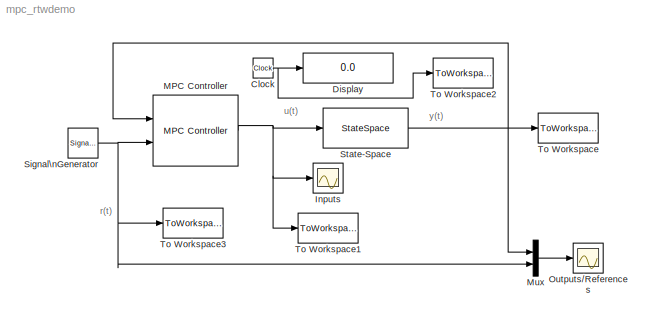
MODEL mpc_rtwdemo
KIND model
BLOCK [Clock] Clock
  Decimation = 10
BLOCK [Display] Display
  Decimation = 1
  Ports = [1]
BLOCK [Scope] Inputs
  DataFormat = Structure
  NumInputPorts = 1
  Ports = [1]
  TimeRange = 10
  YMax = 1.5
  YMin = -1.5
  ZoomMode = yonly
BLOCK [Reference] MPC Controller  REF=mpclib/MPC Controller  (lib defined in mdl_ae329e0e0455)
  Ports = [2, 1]
  ShowPortLabels = on
  SourceBlock = mpclib/MPC Controller
  SourceType = MPC
  from_project = off
  md_from_ws = off
  md_inport = off
  md_preview = on
  md_signal_name = []
  mpcobj = mpccon
  n_mv = 0
  project_file = MPCtask.mat
  ref_from_ws = off
  ref_preview = on
  ref_signal_name = []
  x0 = []
BLOCK [Mux] Mux
  DisplayOption = bar
  Inputs = 2
  Ports = [2, 1]
BLOCK [Scope] Outputs//References
  DataFormat = Structure
  NumInputPorts = 1
  Ports = [1]
  TimeRange = 10
  YMax = 1
  YMin = -1
BLOCK [SignalGenerator] Signal\nGenerator
  Frequency = .4
  Ports = [0, 1]
BLOCK [StateSpace] State-Space
  A = A
  B = B
  C = C
  D = D
  X0 = x0
BLOCK [ToWorkspace] To Workspace
  MaxDataPoints = Inf
  SampleTime = -1
  SaveFormat = Array
  VariableName = y
BLOCK [ToWorkspace] To Workspace1
  MaxDataPoints = Inf
  SampleTime = -1
  SaveFormat = Array
  VariableName = u
BLOCK [ToWorkspace] To Workspace2
  MaxDataPoints = Inf
  SampleTime = -1
  SaveFormat = Array
  VariableName = t
BLOCK [ToWorkspace] To Workspace3
  MaxDataPoints = Inf
  SampleTime = -1
  SaveFormat = Array
  VariableName = r
ANNOTATION (root): r(t)
ANNOTATION (root): u(t)
ANNOTATION (root): y(t)
NET Clock:1 -> Display:1, To Workspace2:1
NET MPC Controller:1 -> Inputs:1, State-Space:1, To Workspace1:1
LINE Mux:1 -> Outputs//References:1
NET Signal\nGenerator:1 -> MPC Controller:2, Mux:2, To Workspace3:1
NET State-Space:1 -> MPC Controller:1, Mux:1, To Workspace:1
note: NET lines group one-source signal fan-out (src -> all destinations, sorted); 1:1 wires keep LINE
